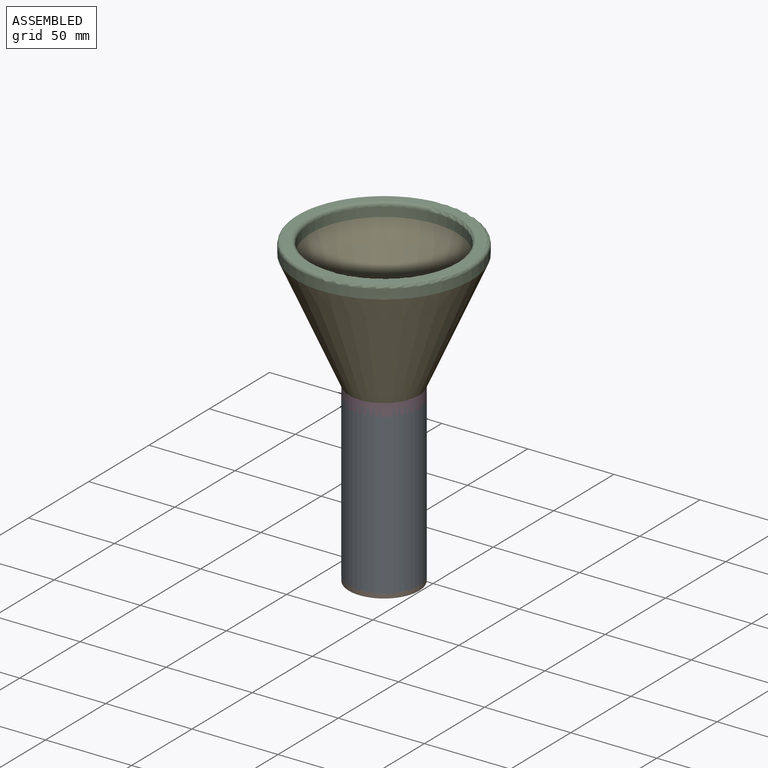
[diagram: assembled view]
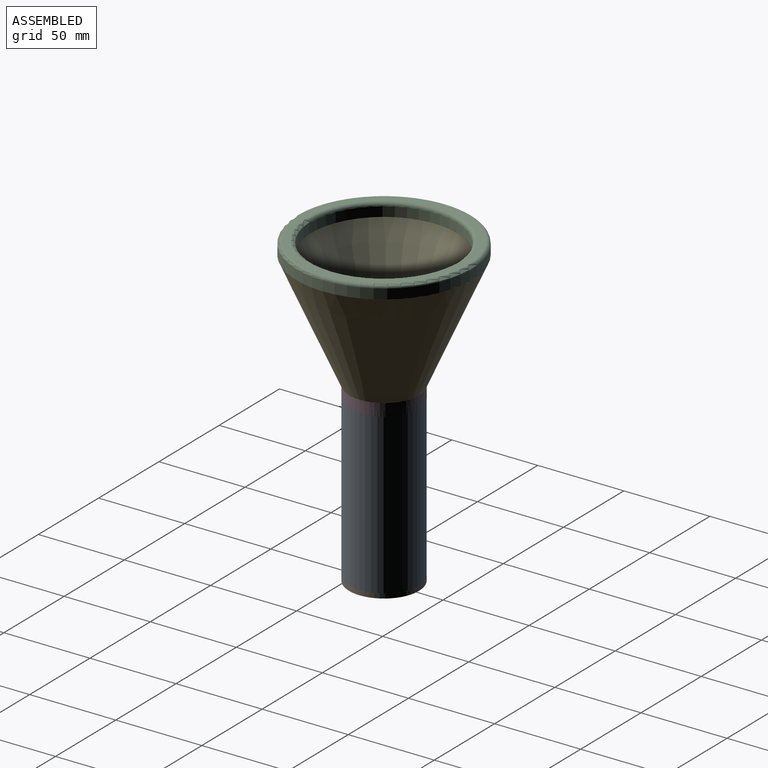
[diagram: assembled view, second angle]
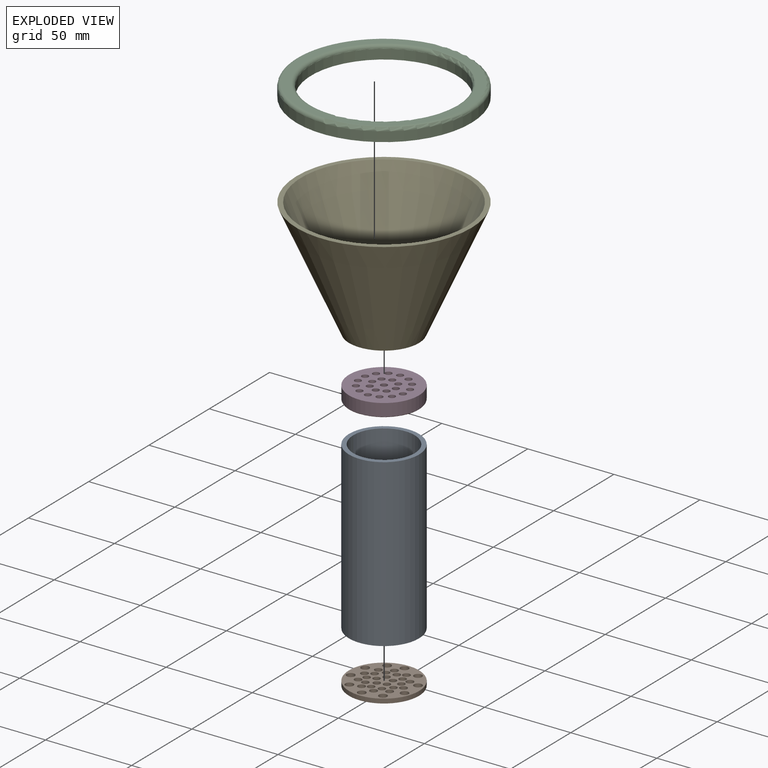
[diagram: exploded view]
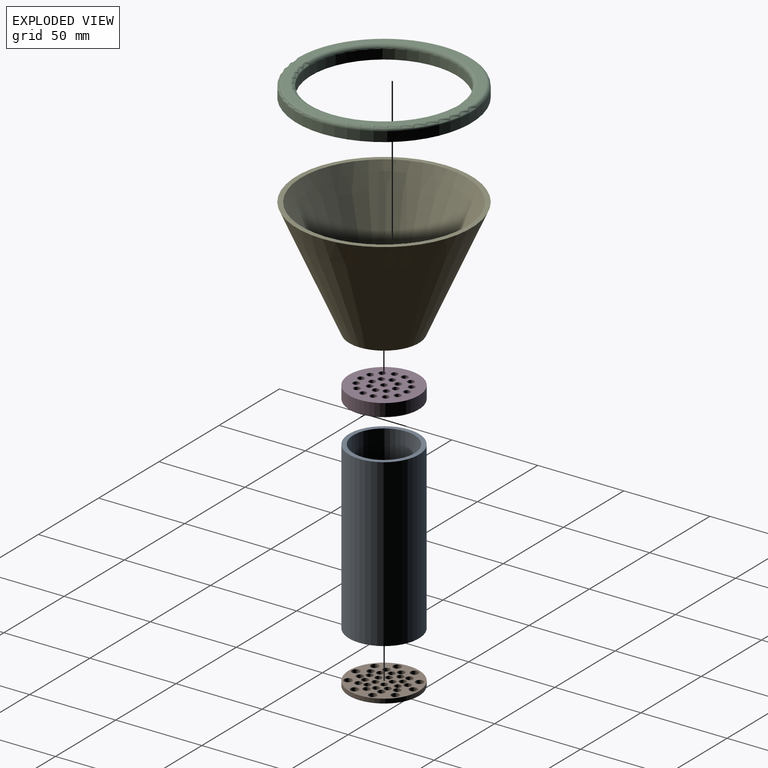
[diagram: exploded view, second angle]
ASSEMBLY  parts=5 mates=4
PART A: 4 faces, bbox 40.6x40.6x96.5 mm
  f0: cylinder r=20.32mm len=96.52mm, axis (0,0,-1), area 12323.1mm2, adj f1,f2
  f1: plane 40.64x40.64mm, normal (0,0,-1), area 304mm2, adj f0,f3
  f2: plane 40.64x40.64mm, normal (0,0,1), area 304mm2, adj f0,f3
  f3: cylinder r=17.78mm len=96.52mm, axis (0,0,-1), area 10782.7mm2, adj f1,f2
PART B: 38 faces, bbox 40.6x40.6x2.5 mm
  f0: cylinder r=2.3mm len=4.61mm, axis (0,0,-1), area 36.8mm2, adj f36,f37
  f1: cylinder r=2.3mm len=4.61mm, axis (0,0,-1), area 36.8mm2, adj f36,f37
  f2: cylinder r=2.3mm len=4.61mm, axis (0,0,-1), area 36.8mm2, adj f36,f37
  f3: cylinder r=2.3mm len=4.61mm, axis (0,0,-1), area 36.8mm2, adj f36,f37
  f4: cylinder r=2.3mm len=4.61mm, axis (0,0,-1), area 36.8mm2, adj f36,f37
  f5: cylinder r=2.3mm len=4.61mm, axis (0,0,-1), area 36.8mm2, adj f36,f37
  f6: cylinder r=2.3mm len=4.61mm, axis (0,0,-1), area 36.8mm2, adj f36,f37
  f7: cylinder r=2.3mm len=4.61mm, axis (0,0,-1), area 36.8mm2, adj f36,f37
  f8: cylinder r=2.3mm len=4.61mm, axis (0,0,-1), area 36.8mm2, adj f36,f37
  f9: cylinder r=2.3mm len=4.61mm, axis (0,0,-1), area 36.8mm2, adj f36,f37
  f10: cylinder r=2.09mm len=4.17mm, axis (0,0,-1), area 33.3mm2, adj f36,f37
  f11: cylinder r=2.09mm len=4.17mm, axis (0,0,-1), area 33.3mm2, adj f36,f37
  f12: cylinder r=2.09mm len=4.17mm, axis (0,0,-1), area 33.3mm2, adj f36,f37
  f13: cylinder r=2.09mm len=4.17mm, axis (0,0,-1), area 33.3mm2, adj f36,f37
  f14: cylinder r=2.09mm len=4.17mm, axis (0,0,-1), area 33.3mm2, adj f36,f37
  f15: cylinder r=2.09mm len=4.17mm, axis (0,0,-1), area 33.3mm2, adj f36,f37
  f16: cylinder r=2.09mm len=4.17mm, axis (0,0,-1), area 33.3mm2, adj f36,f37
  f17: cylinder r=2.09mm len=4.17mm, axis (0,0,-1), area 33.3mm2, adj f36,f37
  f18: cylinder r=2.09mm len=4.17mm, axis (0,0,-1), area 33.3mm2, adj f36,f37
  f19: cylinder r=2.09mm len=4.17mm, axis (0,0,-1), area 33.3mm2, adj f36,f37
  f20: cylinder r=2mm len=3.99mm, axis (0,0,-1), area 31.9mm2, adj f36,f37
  f21: cylinder r=2mm len=3.99mm, axis (0,0,-1), area 31.9mm2, adj f36,f37
  f22: cylinder r=2mm len=3.99mm, axis (0,0,-1), area 31.9mm2, adj f36,f37
  f23: cylinder r=2mm len=3.99mm, axis (0,0,-1), area 31.9mm2, adj f36,f37
  f24: cylinder r=2mm len=3.99mm, axis (0,0,-1), area 31.9mm2, adj f36,f37
  f25: cylinder r=2mm len=3.99mm, axis (0,0,-1), area 31.9mm2, adj f36,f37
  f26: cylinder r=2mm len=3.99mm, axis (0,0,-1), area 31.9mm2, adj f36,f37
  f27: cylinder r=2mm len=3.99mm, axis (0,0,-1), area 31.9mm2, adj f36,f37
  f28: cylinder r=2mm len=3.99mm, axis (0,0,-1), area 31.9mm2, adj f36,f37
  f29: cylinder r=2mm len=3.99mm, axis (0,0,-1), area 31.9mm2, adj f36,f37
  f30: cylinder r=1.98mm len=3.95mm, axis (0,0,-1), area 31.5mm2, adj f36,f37
  f31: cylinder r=1.98mm len=3.95mm, axis (0,0,-1), area 31.5mm2, adj f36,f37
  f32: cylinder r=1.98mm len=3.95mm, axis (0,0,-1), area 31.5mm2, adj f36,f37
  f33: cylinder r=1.98mm len=3.95mm, axis (0,0,-1), area 31.5mm2, adj f36,f37
  f34: cylinder r=1.98mm len=3.95mm, axis (0,0,-1), area 31.5mm2, adj f36,f37
  f35: cylinder r=20.32mm len=40.64mm, axis (0,0,-1), area 324.3mm2, adj f36,f37
  f36: plane 40.64x40.64mm, normal (0,0,1), area 807mm2, adj f0,f1,f2,f3,f4,f5,f6,f7
  f37: plane 40.64x40.64mm, normal (0,0,-1), area 807mm2, adj f0,f1,f2,f3,f4,f5,f6,f7
PART C: 6 faces, bbox 110x110x7.6 mm
  f0: cylinder r=50.8mm len=101.6mm, axis (0,0,-1), area 1793.8mm2, adj f2,f5
  f1: plane 97.6x97.6mm, normal (0,0,1), area 1326.2mm2, adj f4,f5
  f2: plane 101.6x101.6mm, normal (0,0,-1), area 2495.7mm2, adj f0,f3
  f3: cylinder r=42.26mm len=84.53mm, axis (0,0,1), area 1492.4mm2, adj f2,f4
  f4: torus R=44.26mm, axis (0,0,1), area 848.6mm2, adj f1,f3
  f5: torus R=48.8mm, axis (0,0,1), area 988.4mm2, adj f0,f1
PART D: 50 faces, bbox 44x44x7.6 mm
  f0: cylinder r=20.32mm len=40.64mm, axis (0,0,-1), area 909mm2, adj f1,f49
  f1: plane 40.64x40.64mm, normal (0,0,1), area 1035mm2, adj f0,f3,f4,f5,f6,f7,f8,f9
  f2: plane 39.64x39.64mm, normal (0,0,-1), area 816.2mm2, adj f26,f27,f28,f29,f30,f31,f32,f33
  f3: cylinder r=1.91mm len=7.12mm, axis (0,0,-1), area 85.2mm2, adj f1,f47
  f4: cylinder r=1.91mm len=7.12mm, axis (0,0,-1), area 85.2mm2, adj f1,f48
  f5: cylinder r=1.91mm len=7.12mm, axis (0,0,-1), area 85.2mm2, adj f1,f46
  f6: cylinder r=1.91mm len=7.12mm, axis (0,0,-1), area 85.2mm2, adj f1,f45
  f7: cylinder r=1.91mm len=7.12mm, axis (0,0,-1), area 85.2mm2, adj f1,f44
  f8: cylinder r=1.91mm len=7.12mm, axis (0,0,-1), area 85.2mm2, adj f1,f43
  f9: cylinder r=1.91mm len=7.12mm, axis (0,0,-1), area 85.2mm2, adj f1,f42
  f10: cylinder r=1.91mm len=7.12mm, axis (0,0,-1), area 85.2mm2, adj f1,f41
  f11: cylinder r=1.91mm len=7.12mm, axis (0,0,-1), area 85.2mm2, adj f1,f40
  f12: cylinder r=1.91mm len=7.12mm, axis (0,0,-1), area 85.2mm2, adj f1,f39
  f13: cylinder r=1.91mm len=7.12mm, axis (0,0,-1), area 85.2mm2, adj f1,f38
  f14: cylinder r=1.91mm len=7.12mm, axis (0,0,-1), area 85.2mm2, adj f1,f37
  f15: cylinder r=1.91mm len=7.12mm, axis (0,0,-1), area 85.2mm2, adj f1,f36
  f16: cylinder r=1.91mm len=7.12mm, axis (0,0,-1), area 85.2mm2, adj f1,f35
  f17: cylinder r=1.91mm len=7.12mm, axis (0,0,-1), area 85.2mm2, adj f1,f34
  f18: cylinder r=1.91mm len=7.12mm, axis (0,0,-1), area 85.2mm2, adj f1,f33
  f19: cylinder r=1.91mm len=7.12mm, axis (0,0,-1), area 85.2mm2, adj f1,f32
  f20: cylinder r=1.91mm len=7.12mm, axis (0,0,-1), area 85.2mm2, adj f1,f31
  f21: cylinder r=1.91mm len=7.12mm, axis (0,0,-1), area 85.2mm2, adj f1,f30
  f22: cylinder r=1.91mm len=7.12mm, axis (0,0,-1), area 85.2mm2, adj f1,f29
  f23: cylinder r=1.91mm len=7.12mm, axis (0,0,-1), area 85.2mm2, adj f1,f28
  f24: cylinder r=1.91mm len=7.12mm, axis (0,0,-1), area 85.2mm2, adj f1,f27
  f25: cylinder r=1.91mm len=7.12mm, axis (0,0,-1), area 85.2mm2, adj f1,f26
  f26: torus R=2.4mm, axis (0,0,1), area 10.3mm2, adj f2,f25
  f27: torus R=2.4mm, axis (0,0,1), area 10.3mm2, adj f2,f24
  f28: torus R=2.4mm, axis (0,0,1), area 10.3mm2, adj f2,f23
  f29: torus R=2.4mm, axis (0,0,1), area 10.3mm2, adj f2,f22
  f30: torus R=2.4mm, axis (0,0,1), area 10.3mm2, adj f2,f21
  f31: torus R=2.4mm, axis (0,0,1), area 10.3mm2, adj f2,f20
  f32: torus R=2.4mm, axis (0,0,1), area 10.3mm2, adj f2,f19
  f33: torus R=2.4mm, axis (0,0,1), area 10.3mm2, adj f2,f18
  f34: torus R=2.4mm, axis (0,0,1), area 10.3mm2, adj f2,f17
  f35: torus R=2.4mm, axis (0,0,1), area 10.3mm2, adj f2,f16
  f36: torus R=2.4mm, axis (0,0,1), area 10.3mm2, adj f2,f15
  f37: torus R=2.4mm, axis (0,0,1), area 10.3mm2, adj f2,f14
  f38: torus R=2.4mm, axis (0,0,1), area 10.3mm2, adj f2,f13
  f39: torus R=2.4mm, axis (0,0,1), area 10.3mm2, adj f2,f12
  f40: torus R=2.4mm, axis (0,0,1), area 10.3mm2, adj f2,f11
  f41: torus R=2.4mm, axis (0,0,1), area 10.3mm2, adj f2,f10
  f42: torus R=2.4mm, axis (0,0,1), area 10.3mm2, adj f2,f9
  f43: torus R=2.4mm, axis (0,0,1), area 10.3mm2, adj f2,f8
  f44: torus R=2.4mm, axis (0,0,1), area 10.3mm2, adj f2,f7
  f45: torus R=2.4mm, axis (0,0,1), area 10.3mm2, adj f2,f6
  f46: torus R=2.4mm, axis (0,0,1), area 10.3mm2, adj f2,f5
  f47: torus R=2.4mm, axis (0,0,1), area 10.3mm2, adj f2,f3
  f48: torus R=2.4mm, axis (0,0,1), area 10.3mm2, adj f2,f4
  f49: torus R=19.82mm, axis (0,0,1), area 99.4mm2, adj f0,f2
PART E: 28 faces, bbox 101.6x101.6x68.6 mm
  f0: plane 101.6x101.6mm, normal (0,0,1), area 862.9mm2, adj f2,f4
  f1: plane 40.64x40.64mm, normal (0,0,-1), area 1035mm2, adj f2,f5,f6,f7,f8,f9,f10,f11
  f2: cone r=50.8mm half-angle=24deg, axis (0,0,1), area 16768mm2, adj f0,f1
  f3: plane 37.34x37.34mm, normal (0,0,1), area 832.8mm2, adj f4,f5,f6,f7,f8,f9,f10,f11
  f4: cone r=48.48mm half-angle=24deg, axis (0,0,1), area 15141.2mm2, adj f0,f3
  f5: cylinder r=1.91mm len=3.81mm, axis (0,0,-1), area 30.4mm2, adj f1,f3
  f6: cylinder r=1.91mm len=3.81mm, axis (0,0,-1), area 30.4mm2, adj f1,f3
  f7: cylinder r=1.91mm len=3.81mm, axis (0,0,-1), area 30.4mm2, adj f1,f3
  f8: cylinder r=1.91mm len=3.81mm, axis (0,0,-1), area 30.4mm2, adj f1,f3
  f9: cylinder r=1.91mm len=3.81mm, axis (0,0,-1), area 30.4mm2, adj f1,f3
  f10: cylinder r=1.91mm len=3.81mm, axis (0,0,-1), area 30.4mm2, adj f1,f3
  f11: cylinder r=1.91mm len=3.81mm, axis (0,0,-1), area 30.4mm2, adj f1,f3
  f12: cylinder r=1.91mm len=3.81mm, axis (0,0,-1), area 30.4mm2, adj f1,f3
  f13: cylinder r=1.91mm len=3.81mm, axis (0,0,-1), area 30.4mm2, adj f1,f3
  f14: cylinder r=1.91mm len=3.81mm, axis (0,0,-1), area 30.4mm2, adj f1,f3
  f15: cylinder r=1.91mm len=3.81mm, axis (0,0,-1), area 30.4mm2, adj f1,f3
  f16: cylinder r=1.91mm len=3.81mm, axis (0,0,-1), area 30.4mm2, adj f1,f3
  f17: cylinder r=1.91mm len=3.81mm, axis (0,0,-1), area 30.4mm2, adj f1,f3
  f18: cylinder r=1.91mm len=3.81mm, axis (0,0,-1), area 30.4mm2, adj f1,f3
  f19: cylinder r=1.91mm len=3.81mm, axis (0,0,-1), area 30.4mm2, adj f1,f3
  f20: cylinder r=1.91mm len=3.81mm, axis (0,0,-1), area 30.4mm2, adj f1,f3
  f21: cylinder r=1.91mm len=3.81mm, axis (0,0,-1), area 30.4mm2, adj f1,f3
  f22: cylinder r=1.91mm len=3.81mm, axis (0,0,-1), area 30.4mm2, adj f1,f3
  f23: cylinder r=1.91mm len=3.81mm, axis (0,0,-1), area 30.4mm2, adj f1,f3
  f24: cylinder r=1.91mm len=3.81mm, axis (0,0,-1), area 30.4mm2, adj f1,f3
  f25: cylinder r=1.91mm len=3.81mm, axis (0,0,-1), area 30.4mm2, adj f1,f3
  f26: cylinder r=1.91mm len=3.81mm, axis (0,0,-1), area 30.4mm2, adj f1,f3
  f27: cylinder r=1.91mm len=3.81mm, axis (0,0,-1), area 30.4mm2, adj f1,f3
PLACE A t=(-49,-13.5,-117.51)mm
PLACE B t=(-49,-13.5,-120.05)mm
PLACE C t=(-49,-13.5,51.15)mm
PLACE D t=(-49,-13.5,51.15)mm
PLACE E t=(-49,-13.5,51.15)mm
MATE fastened E.f2 <-> D.f0  axis (0,0,-1) through (-49,-13.5,-17.43)mm
MATE fastened A.f0 <-> D.f0  axis (0,0,1) through (-49,-13.5,-20.99)mm
MATE fastened E.f2 <-> C.f0  axis (0,0,1) through (-49,-13.5,51.15)mm
MATE fastened B.f35 <-> A.f0  axis (0,0,1) through (-49,-13.5,-117.51)mm
